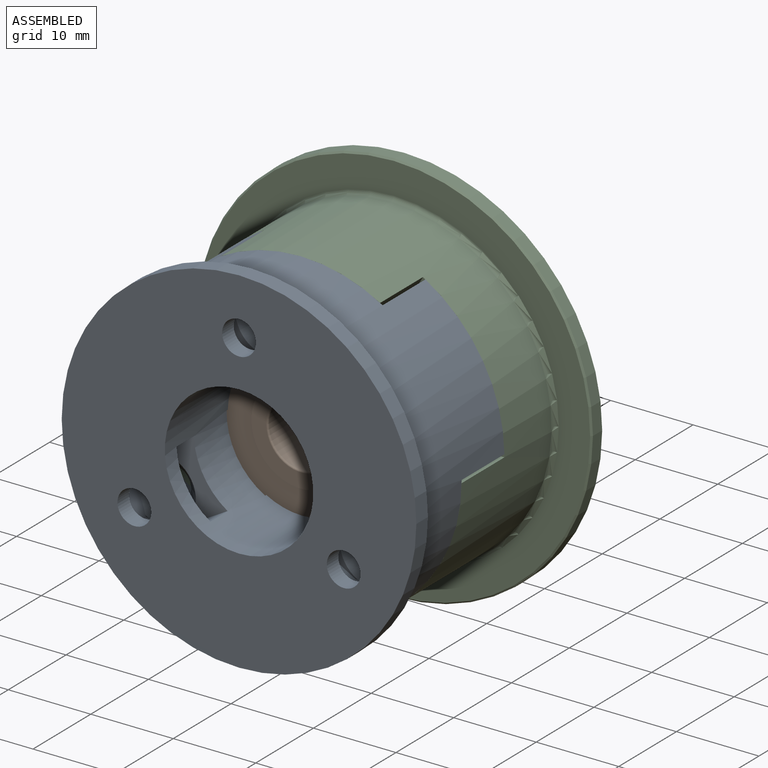
[diagram: assembled view]
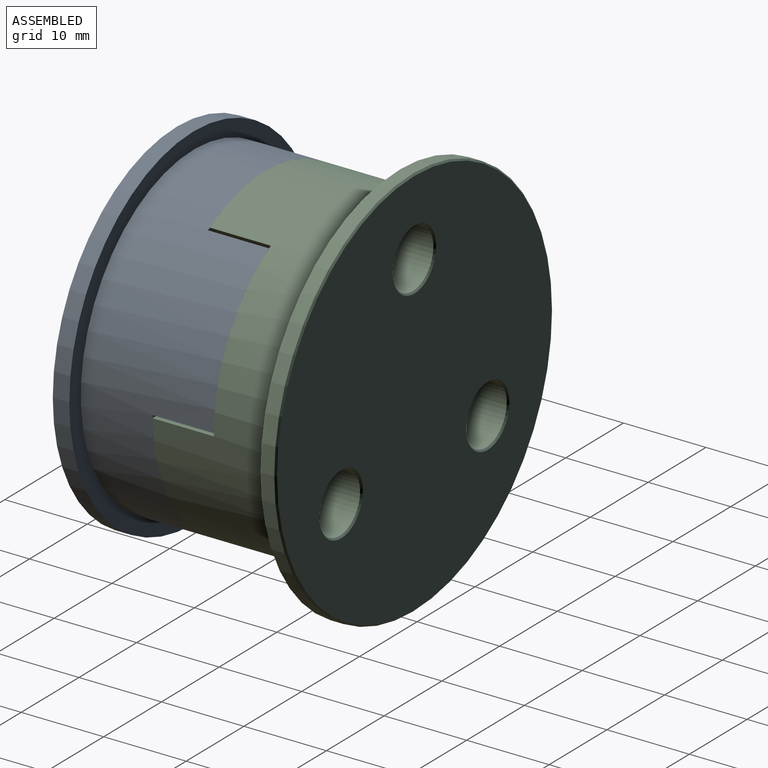
[diagram: assembled view, second angle]
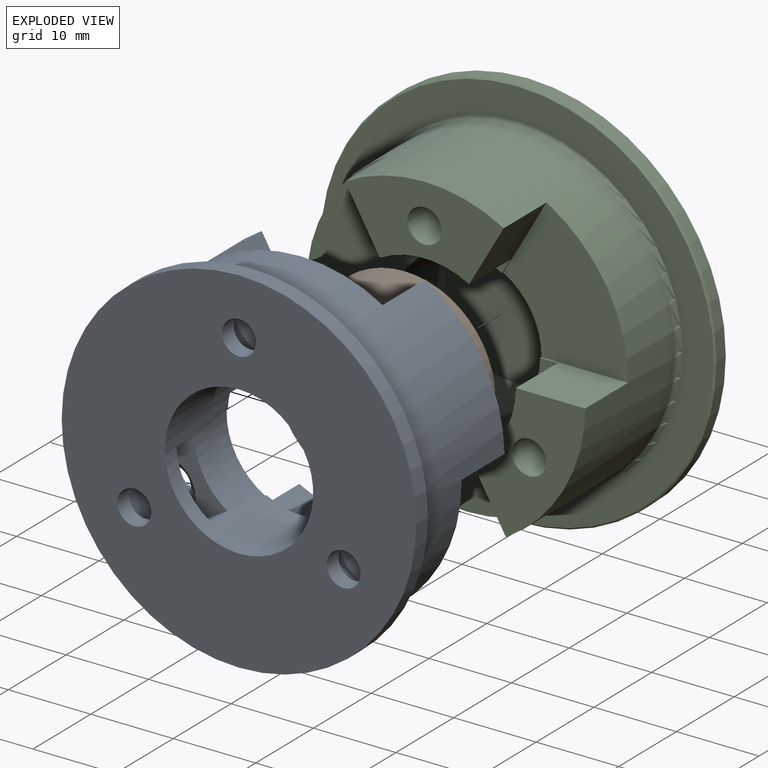
[diagram: exploded view]
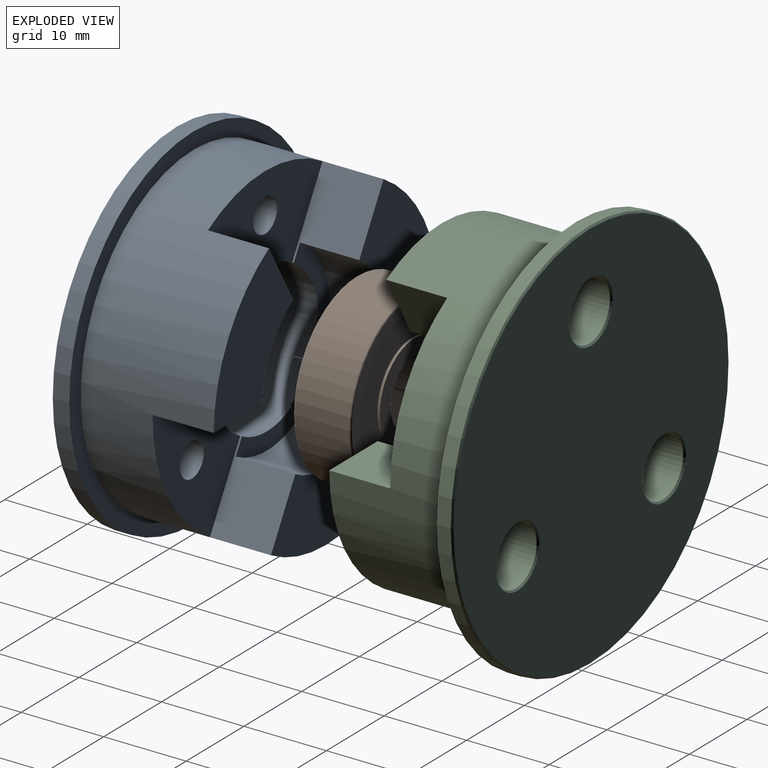
[diagram: exploded view, second angle]
ASSEMBLY  parts=3 mates=5
PART A: 59 faces, bbox 43x18.1x43 mm
  f0: plane 16.59x13.78mm, normal (0,1,0), area 131.2mm2, adj f2,f16,f33,f56
  f1: plane 19.15x9.79mm, normal (0,1,0), area 131.2mm2, adj f8,f16,f44,f57
  f2: cylinder r=11.1mm len=9.31mm, axis (0,1,0), area 80.8mm2, adj f0,f3,f33,f56
  f3: plane 9.31x6.43mm, normal (0,1,0), area 21.3mm2, adj f2,f19,f33,f56
  f4: cylinder r=2.05mm len=4.1mm, axis (0,-1,0), area 48.9mm2, adj f55,f58
  f5: plane 0.48x0.28mm, normal (0,-1,0), area 0mm2, adj f52,f53,f55
  f6: plane 0.55x0.16mm, normal (0,-1,0), area 0mm2, adj f51,f53,f55
  f7: plane 16.59x13.78mm, normal (0,1,0), area 131.2mm2, adj f16,f17,f32,f45
  f8: cylinder r=11.1mm len=10.75mm, axis (0,1,0), area 80.8mm2, adj f1,f9,f44,f57
  f9: plane 10.75x3.21mm, normal (0,1,0), area 21.3mm2, adj f8,f19,f44,f57
  f10: cylinder r=2.05mm len=4.1mm, axis (0,-1,0), area 48.9mm2, adj f43,f46
  f11: plane 0.55x0.16mm, normal (0,-1,0), area 0mm2, adj f40,f41,f43
  f12: plane 0.48x0.28mm, normal (0,-1,0), area 0mm2, adj f39,f41,f43
  f13: cylinder r=2.05mm len=4.1mm, axis (0,-1,0), area 48.9mm2, adj f31,f34
  f14: plane 0.48x0.28mm, normal (0,-1,0), area 0mm2, adj f27,f29,f31
  f15: plane 8.2x6.91mm, normal (0,-1,0), area 24.5mm2, adj f19,f23,f24,f27,f28,f31
  f16: cylinder r=19.5mm len=39mm, axis (0,1,0), area 1510.4mm2, adj f0,f1,f7,f22,f32,f33,f34,f44
  f17: cylinder r=11.1mm len=9.31mm, axis (0,1,0), area 80.8mm2, adj f7,f18,f32,f45
  f18: plane 9.31x6.43mm, normal (0,1,0), area 21.3mm2, adj f17,f19,f32,f45
  f19: cylinder r=9mm len=18mm, axis (0,-1,0), area 533.9mm2, adj f3,f9,f15,f18,f21,f23,f24,f26
  f20: cylinder r=21.5mm len=43mm, axis (0,1,0), area 270.2mm2, adj f21,f22
  f21: plane 43x43mm, normal (0,-1,0), area 1158.1mm2, adj f19,f20,f30,f42,f54
  f22: plane 43x43mm, normal (0,1,0), area 257.6mm2, adj f16,f20
  f23: plane 6.64x3mm, normal (-1,0,0), area 19.9mm2, adj f15,f19,f26,f27
  f24: plane 6.64x3mm, normal (1,0,0), area 19.9mm2, adj f15,f19,f26,f28
  f25: plane 0.48x0.28mm, normal (0,-1,0), area 0mm2, adj f28,f29,f31
  f26: plane 10.19x8.2mm, normal (0,1,0), area 57.6mm2, adj f19,f23,f24,f27,f28,f29,f30
  f27: plane 3.55x3.4mm, normal (-0.87,0,-0.5), area 13.2mm2, adj f14,f15,f23,f26,f29,f31
  f28: plane 3.55x3.4mm, normal (0.87,0,-0.5), area 13.2mm2, adj f15,f24,f25,f26,f29,f31
  f29: plane 4.1x3.4mm, normal (0,0,-1), area 13.2mm2, adj f14,f25,f26,f27,f28,f31
  f30: cylinder r=2.05mm len=4.1mm, axis (0,-1,0), area 25.8mm2, adj f21,f26
  f31: cone r=3.95mm half-angle=45deg, axis (0,-1,0), area 46.7mm2, adj f13,f14,f15,f25,f27,f28,f29
  f32: plane 9.09x7.4mm, normal (-0.87,0,0.5), area 62.6mm2, adj f7,f16,f17,f18,f19,f34
  f33: plane 9.09x7.4mm, normal (0.87,0,0.5), area 62.6mm2, adj f0,f2,f3,f16,f19,f34
  f34: plane 19.85x11.81mm, normal (0,1,0), area 147.7mm2, adj f13,f16,f19,f32,f33
  f35: plane 5.75x3.32mm, normal (0.5,0,0.87), area 19.9mm2, adj f19,f37,f38,f39
  f36: plane 5.75x3.32mm, normal (-0.5,0,-0.87), area 19.9mm2, adj f19,f37,f38,f40
  f37: plane 10.42x10.01mm, normal (0,-1,0), area 24.5mm2, adj f19,f35,f36,f39,f40,f43
  f38: plane 11.9x10.42mm, normal (0,1,0), area 57.6mm2, adj f19,f35,f36,f39,f40,f41,f42
  f39: plane 4.1x3.4mm, normal (0,0,1), area 13.2mm2, adj f12,f35,f37,f38,f41,f43
  f40: plane 3.55x3.4mm, normal (-0.87,0,-0.5), area 13.2mm2, adj f11,f36,f37,f38,f41,f43
  f41: plane 3.55x3.4mm, normal (-0.87,0,0.5), area 13.2mm2, adj f11,f12,f38,f39,f40,f43
  f42: cylinder r=2.05mm len=4.1mm, axis (0,-1,0), area 25.8mm2, adj f21,f38
  f43: cone r=3.95mm half-angle=45deg, axis (0,-1,0), area 46.7mm2, adj f10,f11,f12,f37,f39,f40,f41
  f44: plane 9.09x7.4mm, normal (0.87,0,0.5), area 62.6mm2, adj f1,f8,f9,f16,f19,f46
  f45: plane 10.5x7.4mm, normal (0,0,-1), area 62.6mm2, adj f7,f16,f17,f18,f19,f46
  f46: plane 17.19x15.17mm, normal (0,1,0), area 147.7mm2, adj f10,f16,f19,f44,f45
  f47: plane 5.75x3.32mm, normal (0.5,0,-0.87), area 19.9mm2, adj f19,f49,f50,f51
  f48: plane 5.75x3.32mm, normal (-0.5,0,0.87), area 19.9mm2, adj f19,f49,f50,f52
  f49: plane 10.42x10.01mm, normal (0,-1,0), area 24.5mm2, adj f19,f47,f48,f51,f52,f55
  f50: plane 11.9x10.42mm, normal (0,1,0), area 57.6mm2, adj f19,f47,f48,f51,f52,f53,f54
  f51: plane 3.55x3.4mm, normal (0.87,0,-0.5), area 13.2mm2, adj f6,f47,f49,f50,f53,f55
  f52: plane 4.1x3.4mm, normal (0,0,1), area 13.2mm2, adj f5,f48,f49,f50,f53,f55
  f53: plane 3.55x3.4mm, normal (0.87,0,0.5), area 13.2mm2, adj f5,f6,f50,f51,f52,f55
  f54: cylinder r=2.05mm len=4.1mm, axis (0,-1,0), area 25.8mm2, adj f21,f50
  f55: cone r=3.95mm half-angle=45deg, axis (0,-1,0), area 46.7mm2, adj f4,f5,f6,f49,f51,f52,f53
  f56: plane 10.5x7.4mm, normal (0,0,-1), area 62.6mm2, adj f0,f2,f3,f16,f19,f58
  f57: plane 9.09x7.4mm, normal (-0.87,0,0.5), area 62.6mm2, adj f1,f8,f9,f16,f19,f58
  f58: plane 17.19x15.17mm, normal (0,1,0), area 147.7mm2, adj f4,f16,f19,f56,f57
PART B: 16 faces, bbox 23.8x7x23.8 mm
  f0: plane 19x19mm, normal (0,1,0), area 170.4mm2, adj f1,f15
  f1: cylinder r=9.5mm len=19mm, axis (0,-1,0), area 17.9mm2, adj f0,f2
  f2: plane 21.6x21.6mm, normal (0,1,0), area 82.9mm2, adj f1,f3
  f3: torus R=10.8mm, axis (0,-1,0), area 21.6mm2, adj f2,f4
  f4: cylinder r=11mm len=22mm, axis (0,-1,0), area 456.2mm2, adj f3,f5
  f5: torus R=10.8mm, axis (0,-1,0), area 21.6mm2, adj f4,f6
  f6: plane 21.6x21.6mm, normal (0,-1,0), area 82.9mm2, adj f5,f7
  f7: cylinder r=9.5mm len=19mm, axis (0,-1,0), area 17.9mm2, adj f6,f8
  f8: plane 19x19mm, normal (0,-1,0), area 170.4mm2, adj f7,f9
  f9: cylinder r=6mm len=12mm, axis (0,-1,0), area 11.3mm2, adj f8,f10
  f10: plane 12x12mm, normal (0,-1,0), area 57.7mm2, adj f9,f11
  f11: torus R=4.2mm, axis (0,-1,0), area 8mm2, adj f10,f12
  f12: cylinder r=4mm len=8mm, axis (0,-1,0), area 165.9mm2, adj f11,f13
  f13: torus R=4.2mm, axis (0,-1,0), area 8mm2, adj f12,f14
  f14: plane 12x12mm, normal (0,1,0), area 57.7mm2, adj f13,f15
  f15: cylinder r=6mm len=12mm, axis (0,-1,0), area 11.3mm2, adj f0,f14
PART C: 40 faces, bbox 48x18.1x48 mm
  f0: cylinder r=9mm len=18mm, axis (0,-1,0), area 440.9mm2, adj f3,f7,f13,f19,f20,f21,f24,f25
  f1: plane 19.24x9.81mm, normal (0,-1,0), area 118.9mm2, adj f2,f9,f10,f26,f30
  f2: cylinder r=11.1mm len=10.84mm, axis (0,1,0), area 81.5mm2, adj f1,f3,f26,f30
  f3: plane 10.84x3.23mm, normal (0,-1,0), area 21.5mm2, adj f0,f2,f26,f30
  f4: cylinder r=2.05mm len=12.2mm, axis (0,-1,0), area 157.1mm2, adj f5,f28
  f5: plane 16.66x13.82mm, normal (0,-1,0), area 118.9mm2, adj f4,f6,f10,f21,f25
  f6: cylinder r=11.1mm len=9.39mm, axis (0,1,0), area 81.5mm2, adj f5,f7,f21,f25
  f7: plane 9.39x6.47mm, normal (0,-1,0), area 21.5mm2, adj f0,f6,f21,f25
  f8: cylinder r=2.05mm len=12.2mm, axis (0,-1,0), area 157.1mm2, adj f11,f23
  f9: cylinder r=2.05mm len=12.2mm, axis (0,-1,0), area 157.1mm2, adj f1,f18
  f10: cylinder r=19.5mm len=39mm, axis (0,-1,0), area 1451.4mm2, adj f1,f5,f11,f19,f20,f21,f24,f25
  f11: plane 16.66x13.82mm, normal (0,-1,0), area 118.9mm2, adj f8,f10,f12,f20,f31
  f12: cylinder r=11.1mm len=9.39mm, axis (0,1,0), area 81.5mm2, adj f11,f13,f20,f31
  f13: plane 9.39x6.47mm, normal (0,-1,0), area 21.5mm2, adj f0,f12,f20,f31
  f14: cylinder r=24mm len=48mm, axis (0,-1,0), area 241.3mm2, adj f35,f36
  f15: plane 47.6x47.6mm, normal (0,1,0), area 1647mm2, adj f36,f37,f38,f39
  f16: plane 47.6x47.6mm, normal (0,-1,0), area 522.9mm2, adj f34,f35
  f17: cylinder r=3.55mm len=7.1mm, axis (0,1,0), area 93.7mm2, adj f18,f37
  f18: cone r=4.05mm half-angle=45deg, axis (0,1,0), area 37.3mm2, adj f9,f17
  f19: plane 19.76x11.78mm, normal (0,-1,0), area 159.8mm2, adj f0,f10,f20,f21
  f20: plane 9.09x7.4mm, normal (-0.87,0,-0.5), area 62.6mm2, adj f0,f10,f11,f12,f13,f19
  f21: plane 9.09x7.4mm, normal (0.87,0,-0.5), area 62.6mm2, adj f0,f5,f6,f7,f10,f19
  f22: cylinder r=3.55mm len=7.1mm, axis (0,1,0), area 93.7mm2, adj f23,f39
  f23: cone r=4.05mm half-angle=45deg, axis (0,1,0), area 37.3mm2, adj f8,f22
  f24: plane 17.11x15.13mm, normal (0,-1,0), area 159.8mm2, adj f0,f10,f25,f26
  f25: plane 10.5x7.4mm, normal (0,0,1), area 62.6mm2, adj f0,f5,f6,f7,f10,f24
  f26: plane 9.09x7.4mm, normal (-0.87,0,-0.5), area 62.6mm2, adj f0,f1,f2,f3,f10,f24
  f27: cylinder r=3.55mm len=7.1mm, axis (0,1,0), area 93.7mm2, adj f28,f38
  f28: cone r=4.05mm half-angle=45deg, axis (0,1,0), area 37.3mm2, adj f4,f27
  f29: plane 17.11x15.13mm, normal (0,-1,0), area 159.8mm2, adj f0,f10,f30,f31
  f30: plane 9.09x7.4mm, normal (0.87,0,-0.5), area 62.6mm2, adj f0,f1,f2,f3,f10,f29
  f31: plane 10.5x7.4mm, normal (0,0,1), area 62.6mm2, adj f0,f10,f11,f12,f13,f29
  f32: plane 17x17mm, normal (0,-1,0), area 227mm2, adj f33
  f33: cone r=8.5mm half-angle=45deg, axis (0,-1,0), area 38.9mm2, adj f0,f32
  f34: torus R=20mm, axis (0,1,0), area 97.1mm2, adj f10,f16
  f35: cone r=24mm half-angle=45deg, axis (0,1,0), area 42.5mm2, adj f14,f16
  f36: cone r=23.8mm half-angle=45deg, axis (0,-1,0), area 42.5mm2, adj f14,f15
  f37: cone r=3.55mm half-angle=45deg, axis (0,1,0), area 6.5mm2, adj f15,f17
  f38: cone r=3.55mm half-angle=45deg, axis (0,1,0), area 6.5mm2, adj f15,f27
  f39: cone r=3.55mm half-angle=45deg, axis (0,1,0), area 6.5mm2, adj f15,f22
PLACE A t=(0.24,5.55,-0.06)mm fixed
PLACE B rot(axis=(0,1,0),90deg) t=(0.24,5.25,-0.06)mm
PLACE C t=(0.24,5.35,-0.06)mm
MATE planar C.f11 <-> A.f46  axis (0,-1,0) through (15.54,1.75,-0.21)mm
MATE cylindrical C.f0 <-> A.f19  axis (0,-1,0) through (0.24,12.9,-0.06)mm
MATE cylindrical C.f10 <-> A.f16  axis (0,-1,0) through (0.24,1.75,-0.06)mm
MATE cylindrical B.f1 <-> A.f19  axis (0,-1,0) through (0.24,1.95,-0.06)mm
MATE planar B.f1 <-> A.f58  axis (0,-1,0) through (0.24,1.75,-0.06)mm
